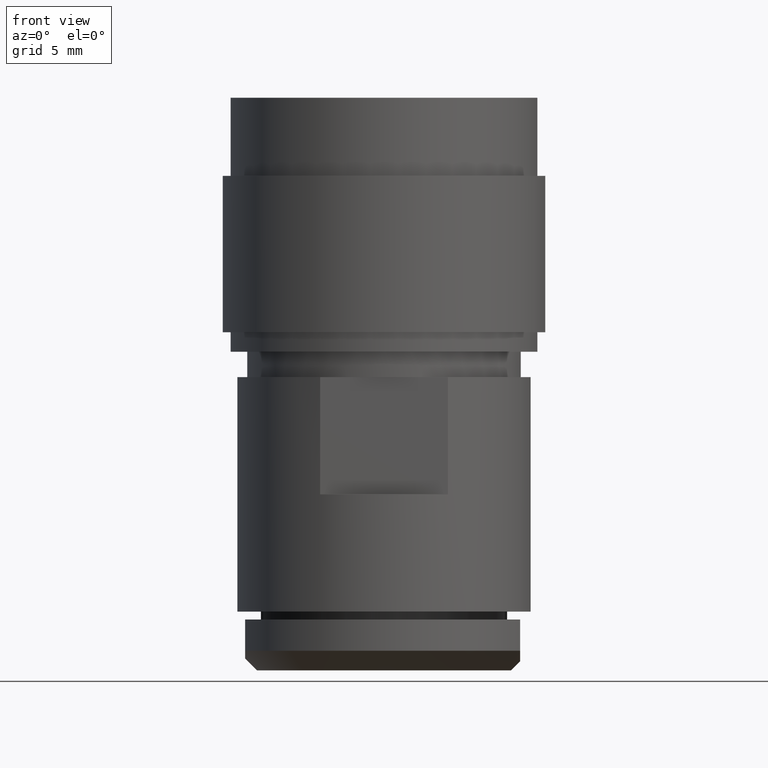
[diagram: clean part render]
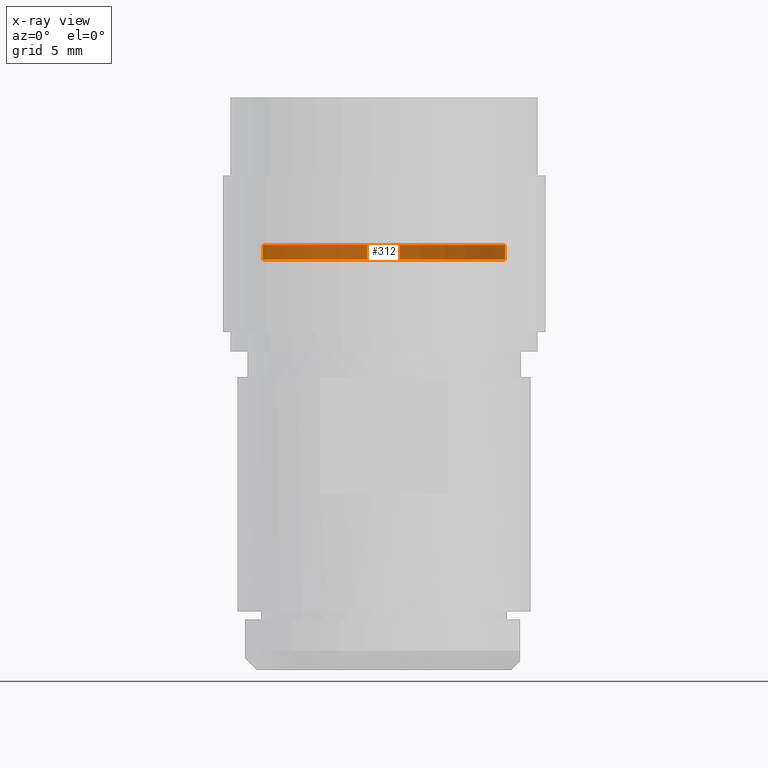
[diagram: x-ray — body ghosted, one internal face saturated and labeled with its STEP entity id]
A machine part, front view, then the same camera in x-ray: the body is ghosted and one INTERNAL B-rep face — a face not visible from any outside direction — is saturated and labeled: STEP entity #312.
In plain terms, the highlighted cylindrical surface (partial cylindrical patch) has radius 7.8712 mm, axis along (-0, -0, 1).
Its self-contained STEP definition (entity closure, byte-faithful):
#5 = ORIENTED_EDGE ( 'NONE', *, *, #972, .T. ) ;
#23 = ORIENTED_EDGE ( 'NONE', *, *, #969, .F. ) ;
#29 = ORIENTED_EDGE ( 'NONE', *, *, #967, .T. ) ;
#31 = ORIENTED_EDGE ( 'NONE', *, *, #971, .F. ) ;
#51 = VERTEX_POINT ( 'NONE', #2656 ) ;
#54 = VERTEX_POINT ( 'NONE', #2653 ) ;
#72 = VERTEX_POINT ( 'NONE', #2635 ) ;
#110 = VERTEX_POINT ( 'NONE', #2597 ) ;
#312 = ADVANCED_FACE ( 'NONE', ( #2066 ), #2064, .T. ) ;
#878 = AXIS2_PLACEMENT_3D ( 'NONE', #2189, #2188, #2187 ) ;
#879 = AXIS2_PLACEMENT_3D ( 'NONE', #2196, #2195, #2194 ) ;
#936 = AXIS2_PLACEMENT_3D ( 'NONE', #2398, #2401, #2402 ) ;
#967 = EDGE_CURVE ( 'NONE', #54, #110, #2012, .T. ) ;
#969 = EDGE_CURVE ( 'NONE', #51, #110, #2010, .T. ) ;
#971 = EDGE_CURVE ( 'NONE', #72, #51, #2005, .T. ) ;
#972 = EDGE_CURVE ( 'NONE', #72, #54, #2004, .T. ) ;
#1697 = EDGE_LOOP ( 'NONE', ( #5, #29, #23, #31 ) ) ;
#1995 = VECTOR ( 'NONE', #2192, 39.37007874015748100 ) ;
#2004 = CIRCLE ( 'NONE', #878, 0.3098906290669745700 ) ;
#2005 = LINE ( 'NONE', #2198, #1995 ) ;
#2009 = VECTOR ( 'NONE', #2209, 39.37007874015748100 ) ;
#2010 = CIRCLE ( 'NONE', #879, 0.3098906290669745700 ) ;
#2012 = LINE ( 'NONE', #2210, #2009 ) ;
#2064 = CYLINDRICAL_SURFACE ( 'NONE', #936, 0.3098906290669745700 ) ;
#2066 = FACE_OUTER_BOUND ( 'NONE', #1697, .T. ) ;
#2187 = DIRECTION ( 'NONE',  ( 1.000000000000000000, 0.0000000000000000000, 0.0000000000000000000 ) ) ;
#2188 = DIRECTION ( 'NONE',  ( -0.0000000000000000000, -0.0000000000000000000, 1.000000000000000000 ) ) ;
#2189 = CARTESIAN_POINT ( 'NONE',  ( 0.0000000000000000000, 0.0000000000000000000, 1.050000000000000000 ) ) ;
#2192 = DIRECTION ( 'NONE',  ( -0.0000000000000000000, -0.0000000000000000000, 1.000000000000000000 ) ) ;
#2194 = DIRECTION ( 'NONE',  ( 1.000000000000000000, 0.0000000000000000000, 0.0000000000000000000 ) ) ;
#2195 = DIRECTION ( 'NONE',  ( -0.0000000000000000000, -0.0000000000000000000, 1.000000000000000000 ) ) ;
#2196 = CARTESIAN_POINT ( 'NONE',  ( 0.0000000000000000000, 0.0000000000000000000, 1.088112347081753300 ) ) ;
#2198 = CARTESIAN_POINT ( 'NONE',  ( 0.3098906290669745700, 0.0000000000000000000, 1.543340615896795900 ) ) ;
#2209 = DIRECTION ( 'NONE',  ( -0.0000000000000000000, -0.0000000000000000000, 1.000000000000000000 ) ) ;
#2210 = CARTESIAN_POINT ( 'NONE',  ( -0.3098906290669745700, 3.795065669726301100E-017, 1.543340615896795900 ) ) ;
#2398 = CARTESIAN_POINT ( 'NONE',  ( 0.0000000000000000000, 0.0000000000000000000, 1.543340615896795900 ) ) ;
#2401 = DIRECTION ( 'NONE',  ( -0.0000000000000000000, -0.0000000000000000000, 1.000000000000000000 ) ) ;
#2402 = DIRECTION ( 'NONE',  ( 1.000000000000000000, 0.0000000000000000000, 0.0000000000000000000 ) ) ;
#2597 = CARTESIAN_POINT ( 'NONE',  ( -0.3098906290669745700, 3.795065669726301100E-017, 1.088112347081753300 ) ) ;
#2635 = CARTESIAN_POINT ( 'NONE',  ( 0.3098906290669745700, 0.0000000000000000000, 1.050000000000000000 ) ) ;
#2653 = CARTESIAN_POINT ( 'NONE',  ( -0.3098906290669745700, 3.795065669726301100E-017, 1.050000000000000000 ) ) ;
#2656 = CARTESIAN_POINT ( 'NONE',  ( 0.3098906290669745700, 0.0000000000000000000, 1.088112347081753300 ) ) ;